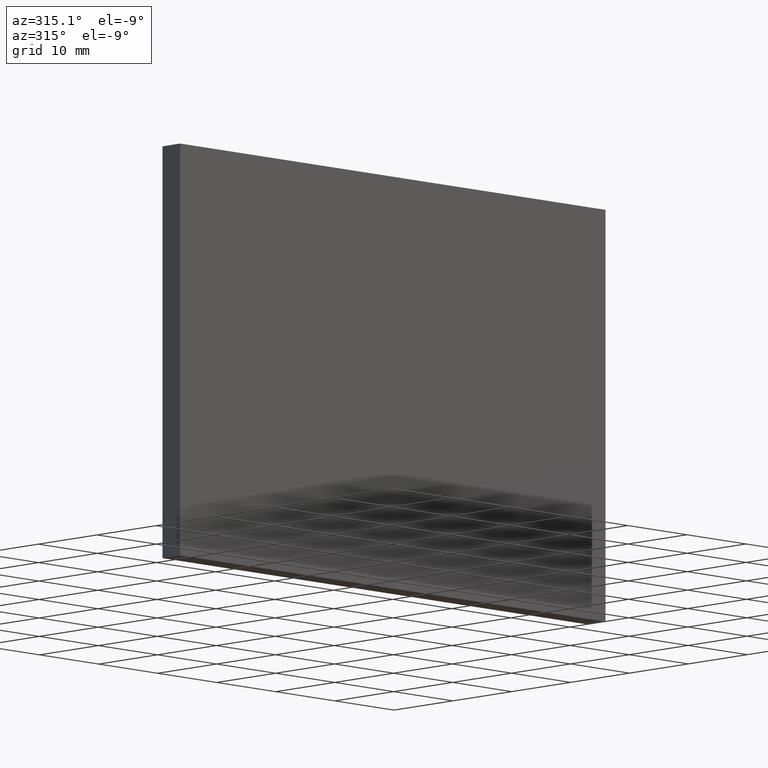
[diagram: clean part render]
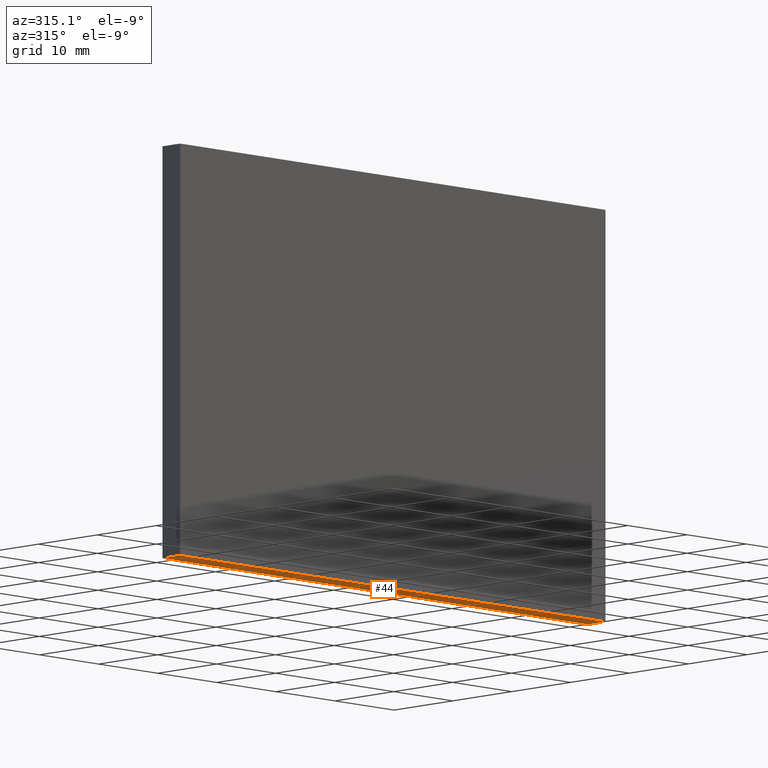
[diagram: same view with one face highlighted and labeled with its STEP entity id]
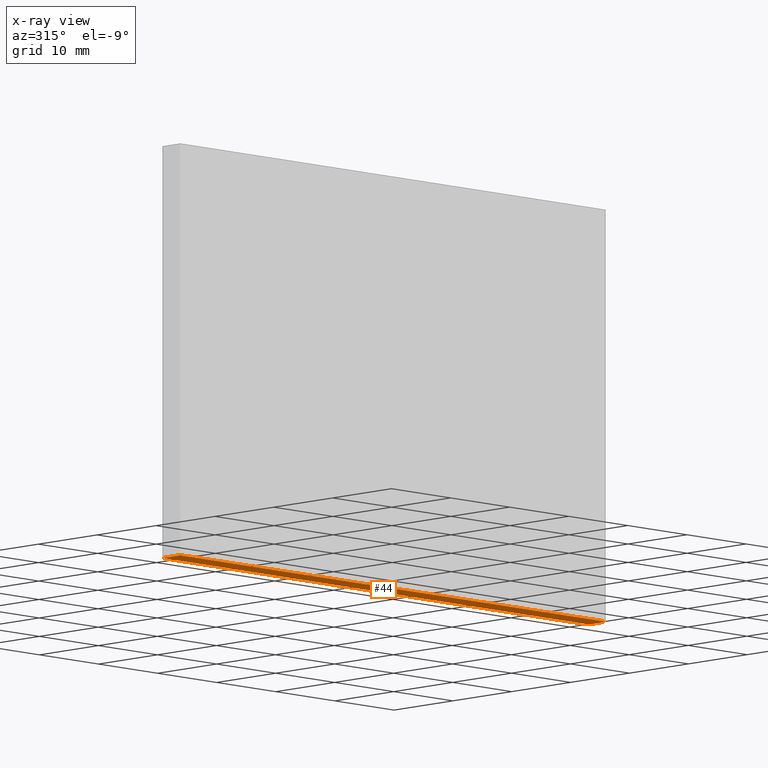
[diagram: x-ray of the same camera — body ghosted, the highlighted face saturated]
A machine part, auxiliary view. The second image highlights one B-rep face of the part: STEP entity #44.
The next image is the same camera in x-ray: the body ghosted, the highlighted face saturated — about 0% of this face is hidden behind the body in this view.
In plain terms, the highlighted planar face has unit normal (0, 0, 1).
Its self-contained STEP definition (entity closure, byte-faithful):
#3 = CARTESIAN_POINT ( 'NONE',  ( -36.00000000000000700, 3.000000000000000000, -25.00000000000000000 ) ) ;
#10 = AXIS2_PLACEMENT_3D ( 'NONE', #3, #162, #176 ) ;
#13 = CARTESIAN_POINT ( 'NONE',  ( 35.99999999999999300, 3.000000000000000000, -25.00000000000000000 ) ) ;
#28 = PLANE ( 'NONE',  #10 ) ;
#44 = ADVANCED_FACE ( 'NONE', ( #57 ), #28, .F. ) ;
#45 = LINE ( 'NONE', #50, #139 ) ;
#50 = CARTESIAN_POINT ( 'NONE',  ( -36.00000000000000700, 3.000000000000000000, -25.00000000000000000 ) ) ;
#57 = FACE_OUTER_BOUND ( 'NONE', #96, .T. ) ;
#62 = VECTOR ( 'NONE', #74, 1000.000000000000000 ) ;
#65 = ORIENTED_EDGE ( 'NONE', *, *, #179, .T. ) ;
#70 = CARTESIAN_POINT ( 'NONE',  ( -36.00000000000000700, 3.000000000000000000, -25.00000000000000000 ) ) ;
#72 = VERTEX_POINT ( 'NONE', #137 ) ;
#74 = DIRECTION ( 'NONE',  ( -0.0000000000000000000, -1.000000000000000000, -0.0000000000000000000 ) ) ;
#76 = VECTOR ( 'NONE', #199, 1000.000000000000000 ) ;
#80 = CARTESIAN_POINT ( 'NONE',  ( -36.00000000000000700, 3.000000000000000000, -25.00000000000000000 ) ) ;
#86 = LINE ( 'NONE', #70, #62 ) ;
#87 = VERTEX_POINT ( 'NONE', #114 ) ;
#96 = EDGE_LOOP ( 'NONE', ( #65, #113, #108, #189 ) ) ;
#103 = LINE ( 'NONE', #184, #76 ) ;
#108 = ORIENTED_EDGE ( 'NONE', *, *, #142, .F. ) ;
#109 = VECTOR ( 'NONE', #119, 1000.000000000000000 ) ;
#113 = ORIENTED_EDGE ( 'NONE', *, *, #186, .F. ) ;
#114 = CARTESIAN_POINT ( 'NONE',  ( 35.99999999999999300, 3.000000000000000000, -25.00000000000000000 ) ) ;
#119 = DIRECTION ( 'NONE',  ( -0.0000000000000000000, -1.000000000000000000, -0.0000000000000000000 ) ) ;
#137 = CARTESIAN_POINT ( 'NONE',  ( -36.00000000000000700, 0.0000000000000000000, -25.00000000000000000 ) ) ;
#139 = VECTOR ( 'NONE', #171, 1000.000000000000000 ) ;
#140 = LINE ( 'NONE', #13, #109 ) ;
#142 = EDGE_CURVE ( 'NONE', #87, #175, #45, .T. ) ;
#153 = CARTESIAN_POINT ( 'NONE',  ( 35.99999999999999300, 0.0000000000000000000, -25.00000000000000000 ) ) ;
#162 = DIRECTION ( 'NONE',  ( 0.0000000000000000000, 0.0000000000000000000, 1.000000000000000000 ) ) ;
#165 = VERTEX_POINT ( 'NONE', #153 ) ;
#171 = DIRECTION ( 'NONE',  ( -1.000000000000000000, -0.0000000000000000000, -0.0000000000000000000 ) ) ;
#175 = VERTEX_POINT ( 'NONE', #80 ) ;
#176 = DIRECTION ( 'NONE',  ( 1.000000000000000000, 0.0000000000000000000, -0.0000000000000000000 ) ) ;
#179 = EDGE_CURVE ( 'NONE', #165, #72, #103, .T. ) ;
#184 = CARTESIAN_POINT ( 'NONE',  ( -36.00000000000000700, 0.0000000000000000000, -25.00000000000000000 ) ) ;
#186 = EDGE_CURVE ( 'NONE', #175, #72, #86, .T. ) ;
#189 = ORIENTED_EDGE ( 'NONE', *, *, #192, .T. ) ;
#192 = EDGE_CURVE ( 'NONE', #87, #165, #140, .T. ) ;
#199 = DIRECTION ( 'NONE',  ( -1.000000000000000000, -0.0000000000000000000, -0.0000000000000000000 ) ) ;